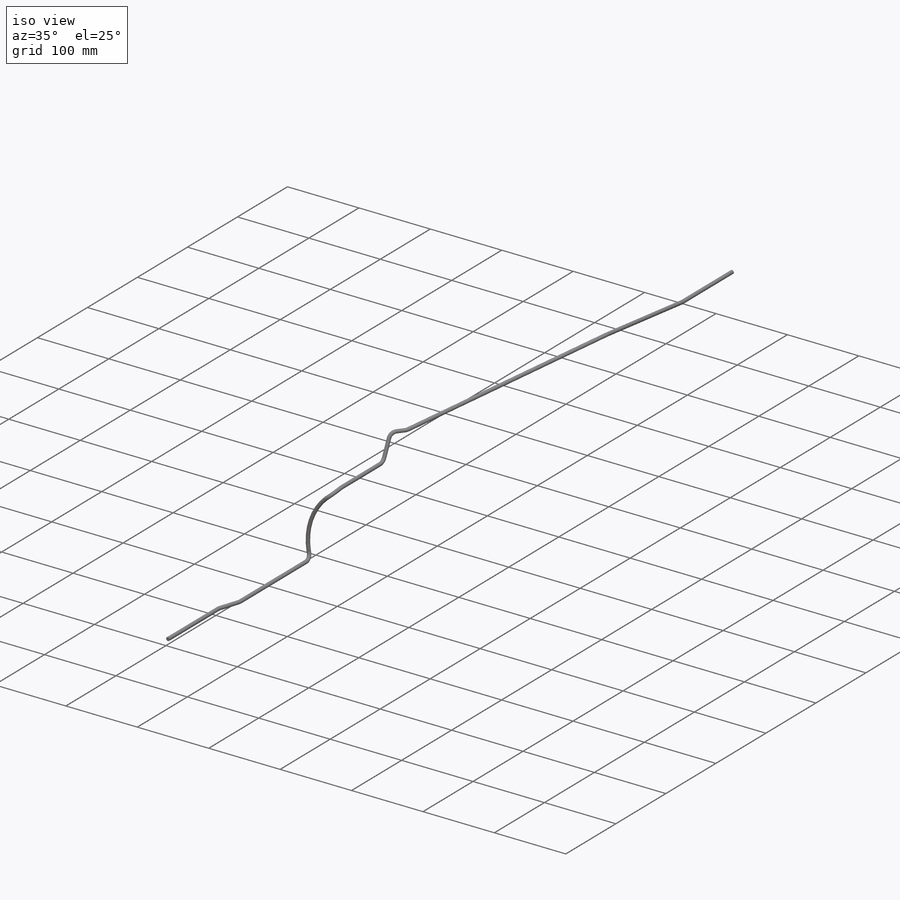
[diagram: iso view]
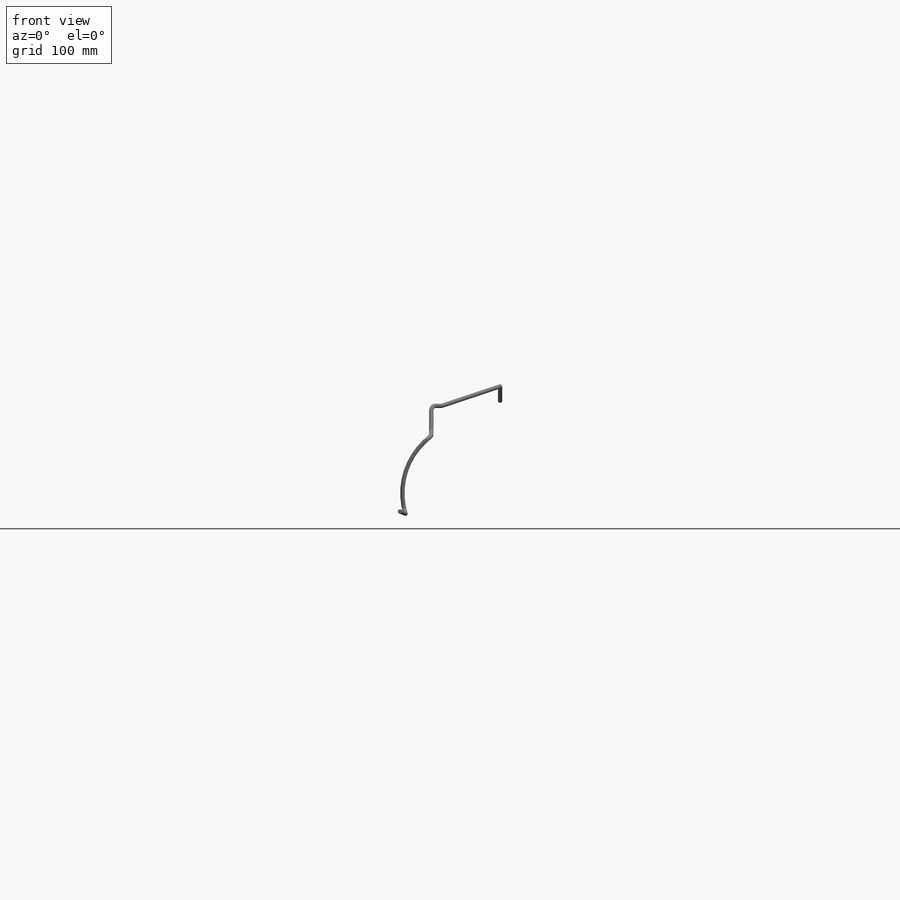
[diagram: front view]
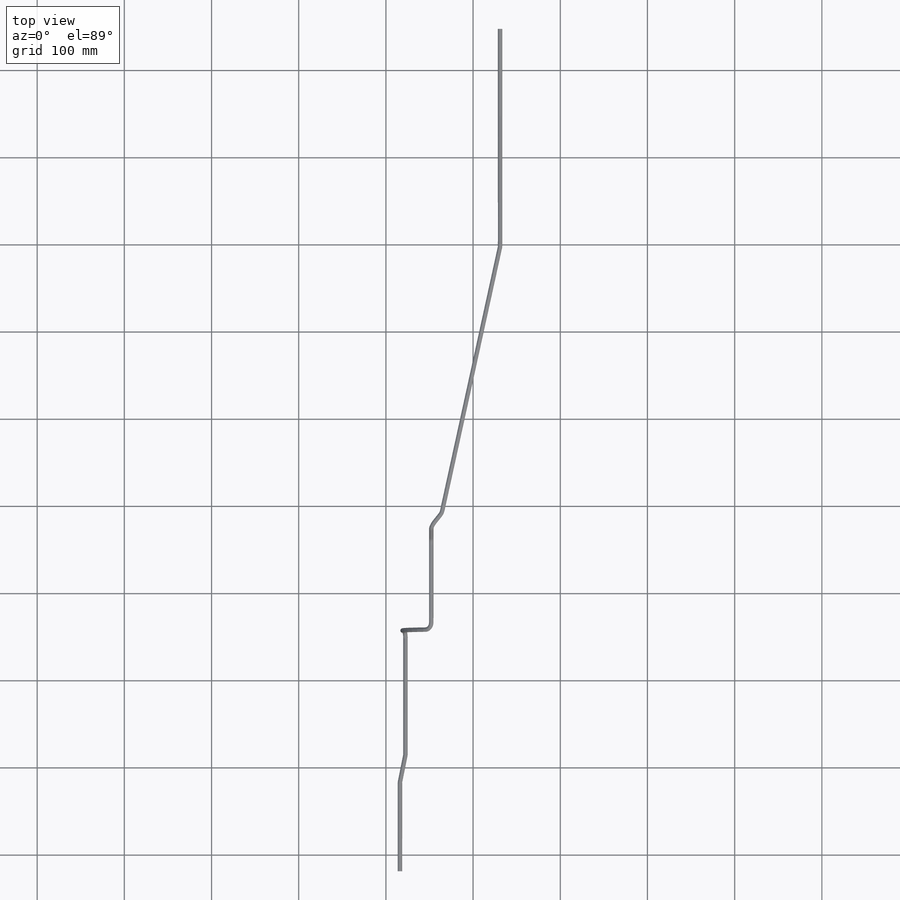
[diagram: top view]
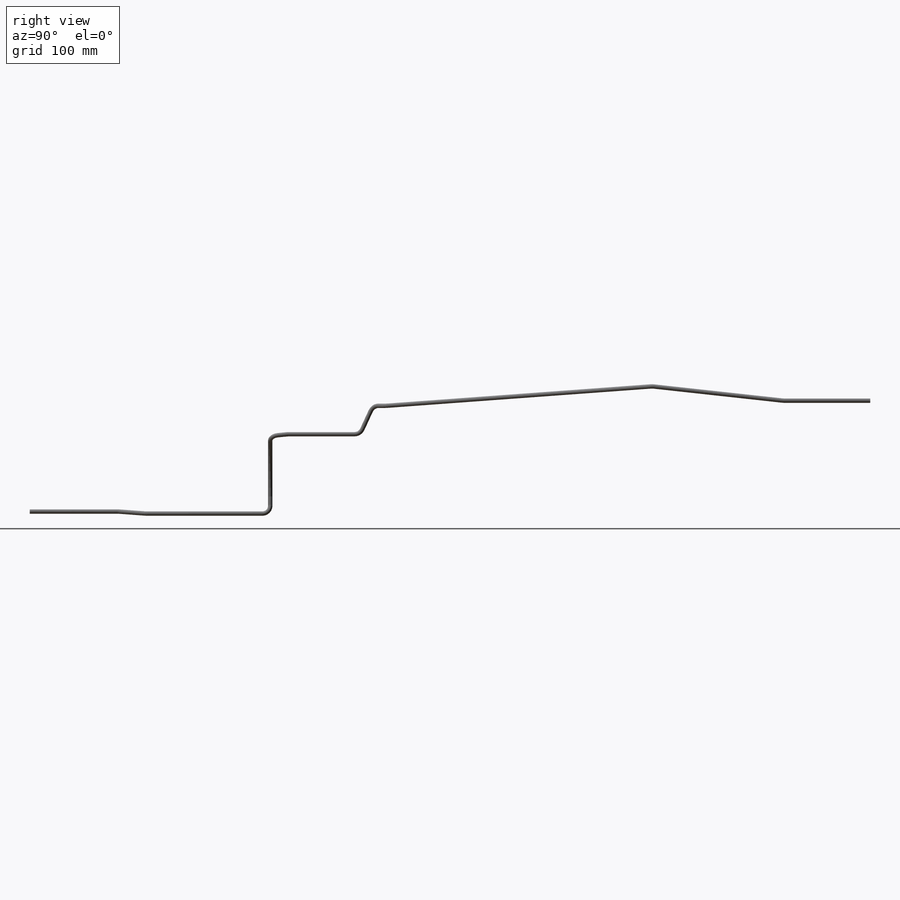
[diagram: right view]
SOLIDWORKS PART (.sldprt)
format: sldprt  version: not decoded by parser v0  size: 10,264,576 bytes
history: native  units: mm
features: sketch x13, plane x11, material x1, sweep x1 + 1 further entry (+12 scaffold rows collapsed)
feature tree (39):
  scaffold x12  (default folders/planes/origin — collapsed)
  material  "Material <not specified>"
  "Design Table"
  plane  "A plane"  Offset=181.2mm zA0=181.2mm
  plane  "B plane"  Offset=283mm zB0=283mm
  plane  "C plane"  Offset=315mm zC0=315mm
  plane  "D plane"  Offset=380mm zD0=380mm
  plane  "E plane"  Offset=20mm
  plane  "F plane"  Offset=560mm zF0=560mm
  plane  "G plane"  Offset=575mm zG0=575mm
  plane  "H Plane"  Offset=590mm zH0=590mm
  plane  "I Plane"  Offset=1021.9mm zI0=1021.9mm
  plane  "J Plane"  Offset=150mm zJI=150mm
  plane  "K Plane"  Offset=100mm
  sketch  "start ref"
  sketch  "A sketch"  dims[c1.dWire=5.0mm c1.xA=~24.748212mm c1.yA=~85.740411mm c2.xA=~12.374106mm c2.D1=100.0mm c2.D2=100.0mm c3.xA=~87.625894mm c3.yA=~185.740411mm]
  sketch  "B sketch"  dims[D1=100.0mm D2=100.0mm xB=~87.625894mm D3=~185.740411mm]
  sketch  "C sketch"  dims[c1.rC=81.1mm c1.D1=81.1mm c1.angC=66.5deg c2.D1=~85.73699mm c2.thC=~44.785082deg]
  sketch  "D sketch"  dims[c1.D2=6.2mm c1.D7=162.2mm c1.D1=81.1mm c2.D1=~13.205373deg c3.D1=10.0mm c3.D2=10.0mm c3.D3=100.0mm c3.D4=100.0mm c3.xD=68.0mm c3.D6=~174.519863mm c4.xD=68.0mm c4.D5=~60.064206mm c4.D6=~60.064206mm]
  sketch  "E sketch"  dims[c1.D1=162.2mm c1.D2=8.2mm c2.D1=~208.31464mm c2.xE=32.0mm c2.yE=~99.119863mm c2.yED=26.0mm]
  sketch  "F sketch"
  sketch  "G sketch"  dims[c1.D1=8.2mm c1.xG=32.0mm c2.xG=32.0mm c2.yG=121.2mm c3.yG=124.0mm]
  sketch  "H sketch"  dims[c1.D1=8.2mm c1.xH=20.0mm c1.yH=145.0mm c2.yH=121.2mm c3.yH=124.0mm c3.xH=20.0mm]
  sketch  "I sketch"  dims[c1.D1=8.2mm c1.xI=15.957mm c1.yI=~174.400911mm c1.D2=200.0mm c2.xI=215.957mm]
  sketch  "J sketch"  dims[c1.yJI=102.11mm c2.yJI=~194.510911mm]
  sketch  "K sketch"
  sketch  "3DSketch1"  dims[D1=9.0mm D2=10.0mm D3=10.0mm D4=10.0mm]
  sweep  "Sweep1"
decode coverage: 10 of 14 modeling features carry decoded parameters; 1 rows unclassified (native names shown)
note: ~ marks probable driven/reference dimensions
note: suppression state not decoded; provenance and decode notes live in map.json
